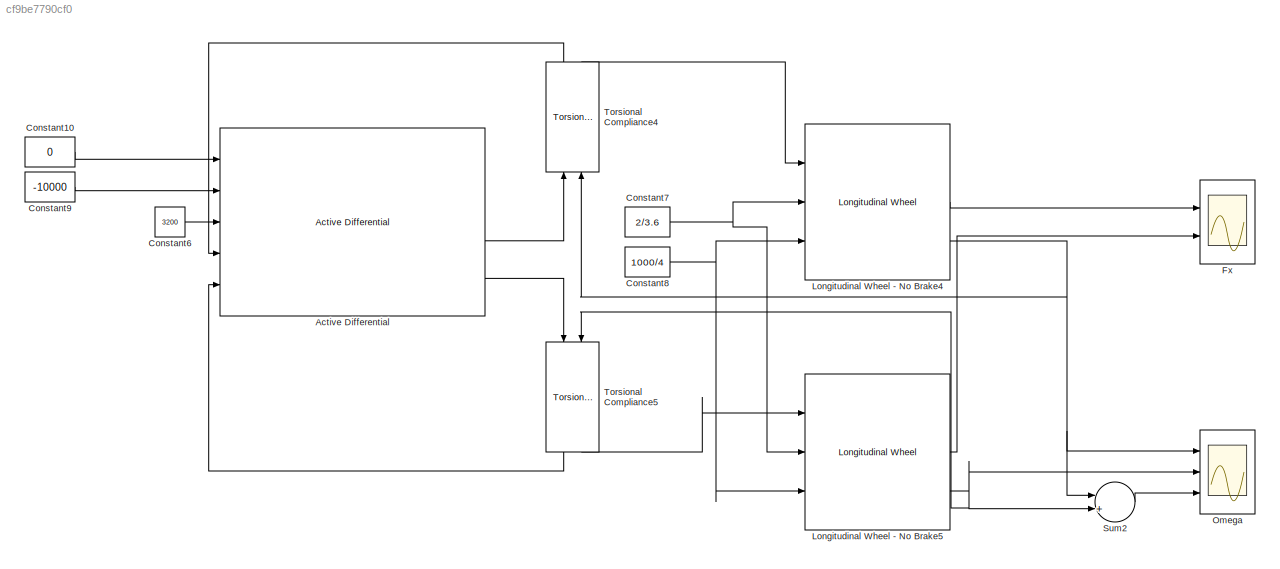
MODEL slx_cf9be7790cf0
KIND model
CONFIG AbsTol = auto
CONFIG EnableMultiTasking = off
CONFIG FixedStep = auto
CONFIG MaxStep = auto
CONFIG MinStep = auto
CONFIG RelTol = 1e-3
CONFIG SampleTimeConstraint = Unconstrained
CONFIG Solver = VariableStepAuto
CONFIG SolverName = VariableStepAuto
CONFIG StartTime = 0.0
CONFIG StopTime = 10.0
BLOCK [Reference] Active Differential  REF=autolibshareddiff/Active Differential
  Ports = [5, 4]
  SourceBlock = autolibshareddiff/Active Differential
  SourceProductBaseCode = PW
  SourceProductName = Powertrain Blockset
  SourceType = Active Slip Differential
BLOCK [Constant] Constant10
  Value = 0
BLOCK [Constant] Constant6
  Value = 3200
BLOCK [Constant] Constant7
  Value = 2/3.6
BLOCK [Constant] Constant8
  Value = 1000/4
BLOCK [Constant] Constant9
  Value = -10000
BLOCK [Scope] Fx
  Floating = off
  NumInputPorts = 2
  Ports = [2]
  ScopeSpecificationString = Simulink.scopes.TimeScopeBlockCfg('CurrentConfiguration', extmgr.ConfigurationSet(extmgr.Configuration('Core','General UI',true),extmgr.Configuration('Core','Source UI',true),extmgr.Configuration('Sources','WiredSimulink',true,'DataLoggingVariableName','ScopeData1'),extmgr.Configuration('Visuals','Time Domain',true,'SerializedDisplays',{struct('MinYLimReal','-307.91726','MaxYLimReal','311.98862','...<+1512ch>
BLOCK [Reference] Longitudinal Wheel - No Brake4  REF=autolibshared/Longitudinal Wheel
  AttributesFormatString = Fx Type: %<FxType>\nRolling Type: %<rollingType>
  Ports = [3, 3]
  SourceBlock = autolibshared/Longitudinal Wheel
  SourceProductBaseCode = PW
  SourceProductName = Powertrain Blockset
  SourceType = Longitudinal Wheel
BLOCK [Reference] Longitudinal Wheel - No Brake5  REF=autolibshared/Longitudinal Wheel
  AttributesFormatString = Fx Type: %<FxType>\nRolling Type: %<rollingType>
  Ports = [3, 3]
  SourceBlock = autolibshared/Longitudinal Wheel
  SourceProductBaseCode = PW
  SourceProductName = Powertrain Blockset
  SourceType = Longitudinal Wheel
BLOCK [Scope] Omega
  Floating = off
  NumInputPorts = 3
  Ports = [3]
  ScopeSpecificationString = Simulink.scopes.TimeScopeBlockCfg('CurrentConfiguration', extmgr.ConfigurationSet(extmgr.Configuration('Core','General UI',true),extmgr.Configuration('Core','Source UI',true),extmgr.Configuration('Sources','WiredSimulink',true,'DataLoggingVariableName','ScopeData2'),extmgr.Configuration('Visuals','Time Domain',true,'SerializedDisplays',{struct('MinYLimReal','-771.84629','MaxYLimReal','5660.60961',...<+1529ch>
BLOCK [Sum] Sum2
  IconShape = round
  InputSameDT = off
  Inputs = |+-|
  OutDataTypeStr = Inherit: Inherit via internal rule
  Ports = [2, 1]
  SaturateOnIntegerOverflow = off
BLOCK [Reference] Torsional Compliance4  REF=autolibsharedcoupling/Torsional Compliance
  Ports = [2, 2]
  SourceBlock = autolibsharedcoupling/Torsional Compliance
  SourceProductBaseCode = PW
  SourceProductName = Powertrain Blockset
  SourceType = Torsional Compliance
BLOCK [Reference] Torsional Compliance5  REF=autolibsharedcoupling/Torsional Compliance
  Ports = [2, 2]
  SourceBlock = autolibsharedcoupling/Torsional Compliance
  SourceProductBaseCode = PW
  SourceProductName = Powertrain Blockset
  SourceType = Torsional Compliance
LINE Active Differential:3 -> Torsional Compliance4:1
LINE Active Differential:4 -> Torsional Compliance5:1
LINE Constant10:1 -> Active Differential:1
LINE Constant6:1 -> Active Differential:3
NET Constant7:1 -> Longitudinal Wheel - No Brake4:2, Longitudinal Wheel - No Brake5:2
NET Constant8:1 -> Longitudinal Wheel - No Brake4:3, Longitudinal Wheel - No Brake5:3
LINE Constant9:1 -> Active Differential:2
LINE Longitudinal Wheel - No Brake4:2 -> Fx:1
NET Longitudinal Wheel - No Brake4:3 -> Omega:1, Sum2:1, Torsional Compliance4:2
LINE Longitudinal Wheel - No Brake5:2 -> Fx:2
NET Longitudinal Wheel - No Brake5:3 -> Omega:2, Sum2:2, Torsional Compliance5:2
LINE Sum2:1 -> Omega:3
LINE Torsional Compliance4:1 -> Active Differential:4
LINE Torsional Compliance4:2 -> Longitudinal Wheel - No Brake4:1
LINE Torsional Compliance5:1 -> Active Differential:5
LINE Torsional Compliance5:2 -> Longitudinal Wheel - No Brake5:1
note: NET lines group one-source signal fan-out (src -> all destinations, sorted); 1:1 wires keep LINE
